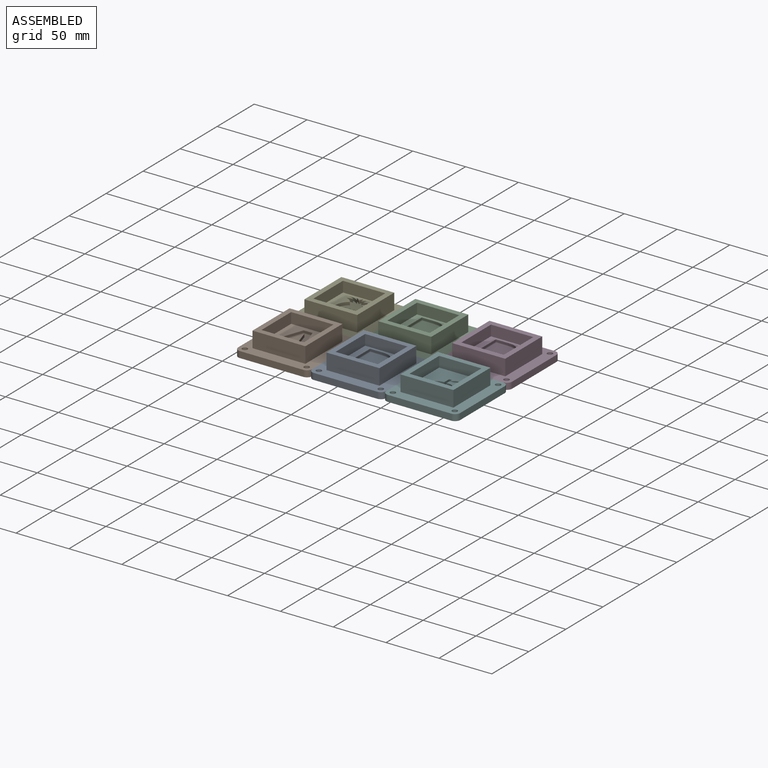
[diagram: assembled view]
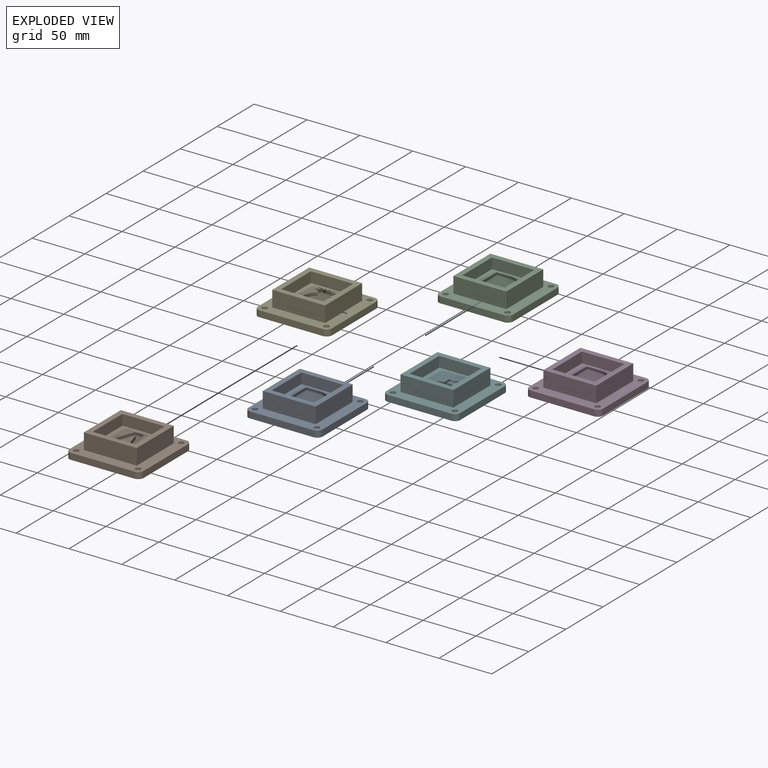
[diagram: exploded view]
GUIDED TOUR — MATED ASSEMBLY (Onshape document 57f4850d10cee010fd6dc6e3, AutoMate assembly 57f4850d10cee010fd6dc6e3_9694a29bd46bf6db44238907_eb34439fa91bccfecb1770f1_default)

This assembly has 6 components, labeled P0..P5 below (a component is one placed occurrence of a part; the same part can appear more than once), held together by 5 mates. A mate is a constraint between two components; its type names the relative motion it leaves free:
  FASTENED — locks the two components together rigidly (no relative motion).
Axis/direction vectors are unit vectors and 'through' points are millimeter coordinates, both in the assembly's world frame.

MATES
  1. FASTENED "緊固 4": P0 <-> P2, direction (0.000, 1.000, 0.000) through (-187.30, 25.57, -44.27) mm
  2. FASTENED "緊固 2": P4 <-> P2, direction (1.000, 0.000, 0.000) through (-222.30, 60.57, -44.27) mm
  3. FASTENED "緊固 5": P5 <-> P0, direction (-1.000, 0.000, 0.000) through (-152.30, -9.43, -44.27) mm
  4. FASTENED "緊固 3": P1 <-> P4, direction (0.000, 1.000, 0.000) through (-257.30, 25.57, -44.27) mm
  5. FASTENED "緊固 1": P2 <-> P3, direction (1.000, 0.000, 0.000) through (-152.30, 60.57, -44.27) mm

ASSEMBLY ORDER
  1. P5 — the base component [order verified]
  2. P3 [order verified]
  3. P4 [order verified]
  4. P2 [order verified]
  5. P0 [order verified]
  6. P1 [order verified]
Order-tag legend:
  [order verified] — this step's position reverses a verified removal order: the component was checked to insert without passing through the ones already placed.

Of the 6 components, 4 carry the full construction recipe — the FeatureScript program that regenerates the part's solid from scratch; the rest are supplied as boundary geometry only.
Each toured component is shown spotlighted twice — in the assembled view, then in the exploded view, where a leader line traces a displaced component back to its assembled socket (saturated green if recipe-attached, orange if geometry-only; every other component desaturated gray) — followed by its recipe or geometry summary and the mates that hold it.
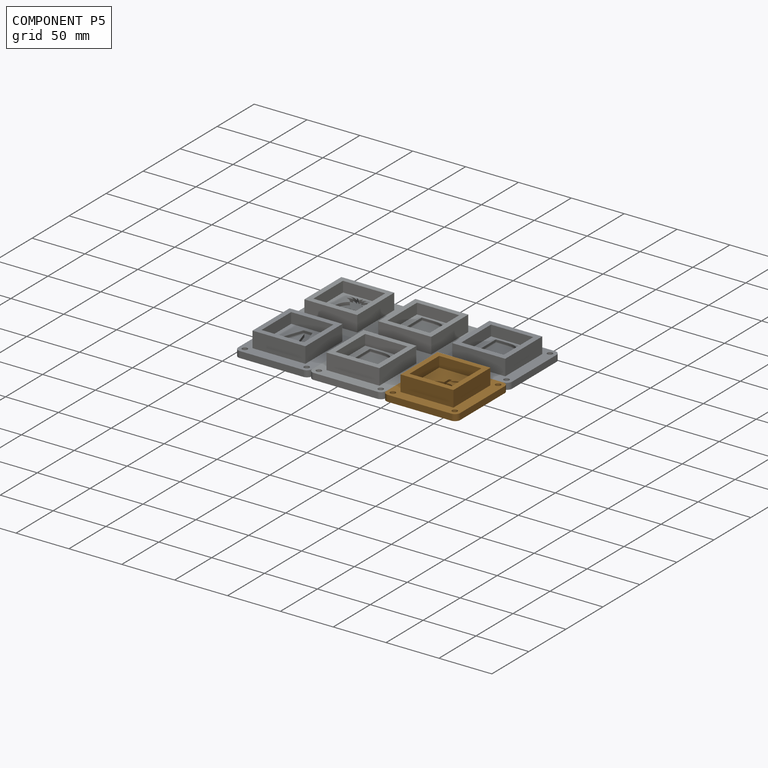
[diagram: component P5 — assembled]
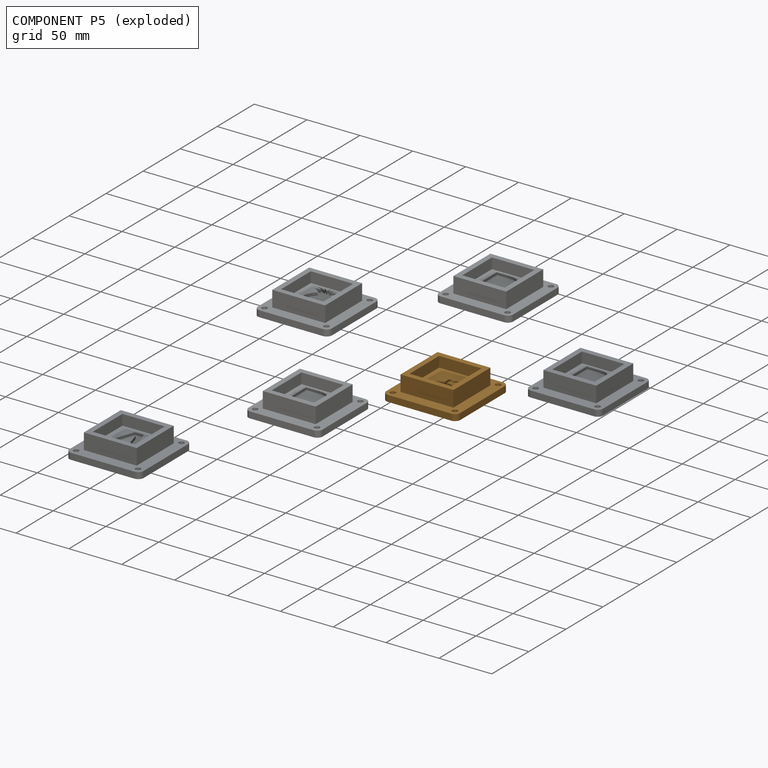
[diagram: component P5 — exploded]
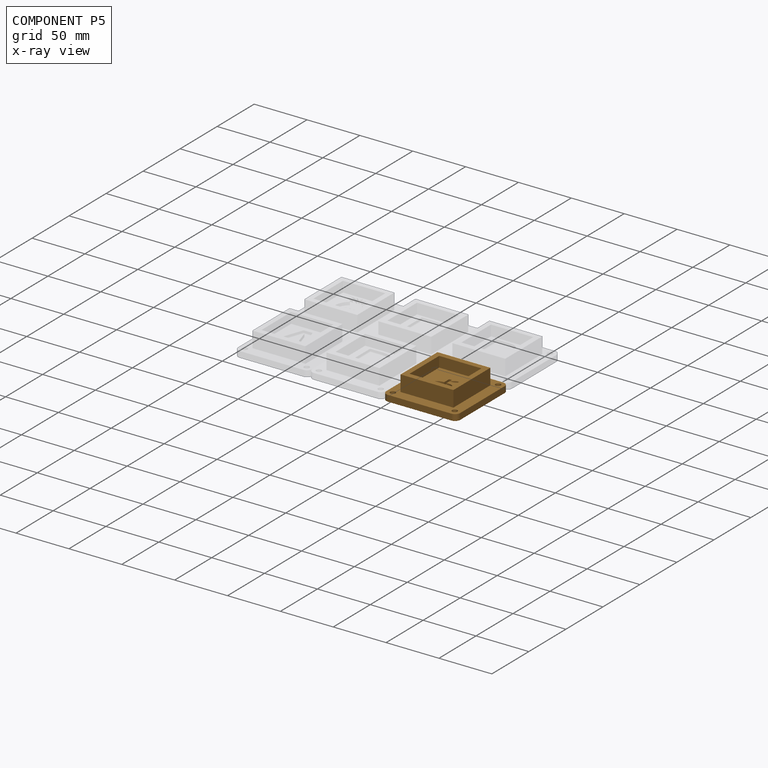
[diagram: component P5 — x-ray view]
COMPONENT P5 — geometry summary (no construction recipe available for this part):
  bounding box: 70.0 x 70.0 x 21.0 mm
  B-rep topology: 1 solid, 40 faces, 200 edges
  volume: 49170 mm^3 (48% of its bounding box)
Held by: FASTENED mate "緊固 5" to P0.
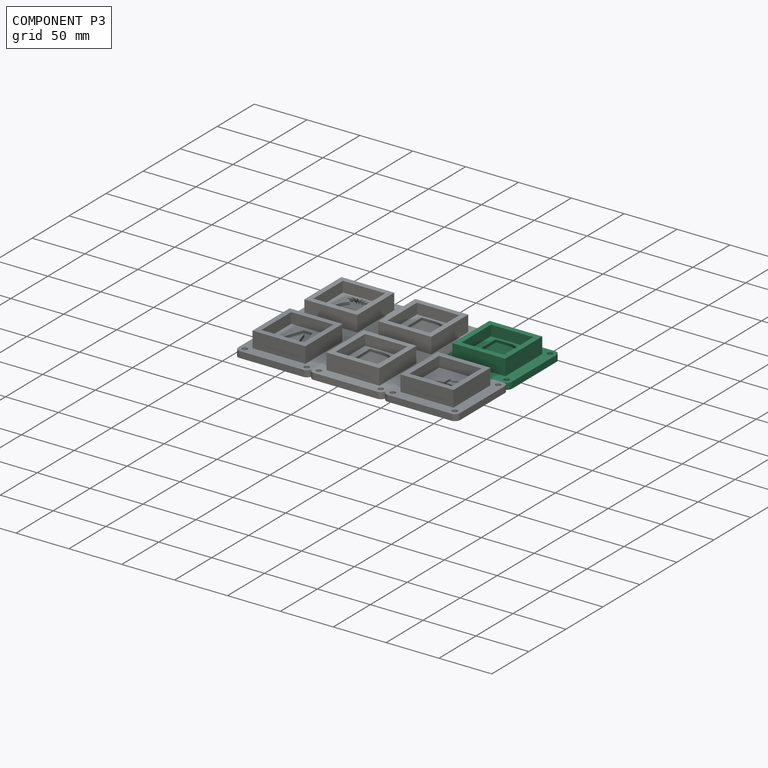
[diagram: component P3 — assembled]
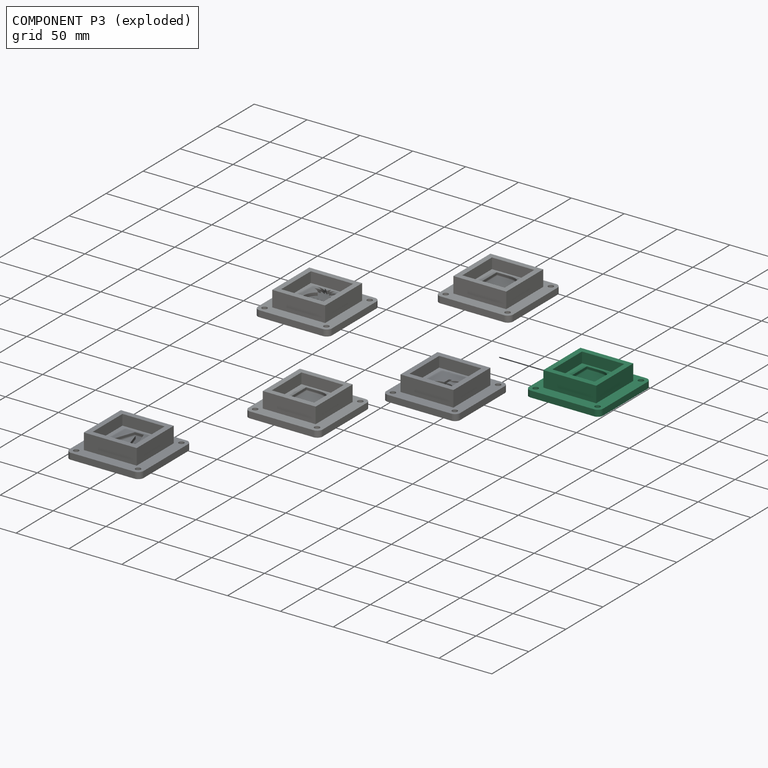
[diagram: component P3 — exploded]
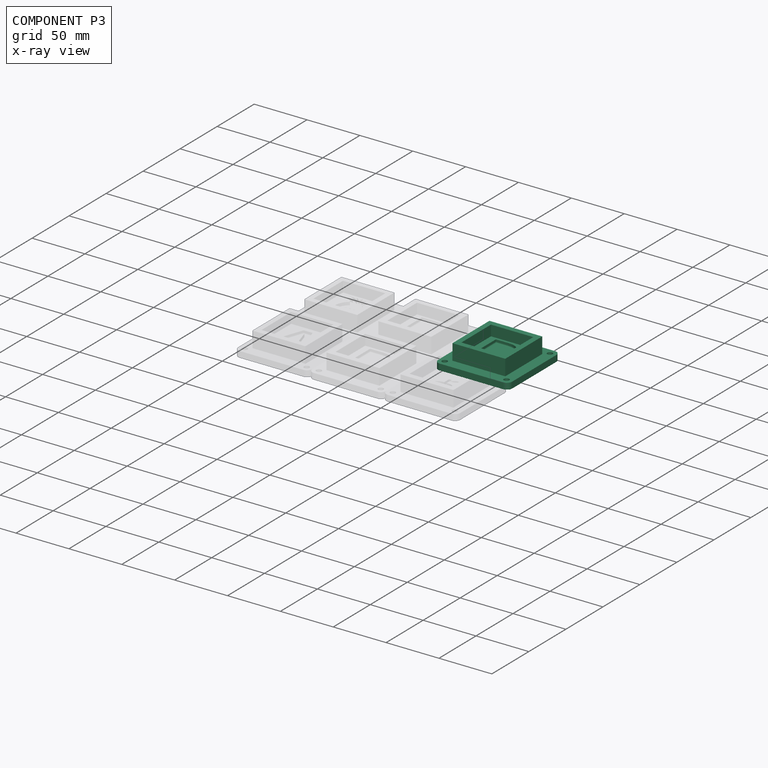
[diagram: component P3 — x-ray view]
COMPONENT P3 — same part as P0 (CADFS 00273545); its construction recipe is shown at P0.
Held by: FASTENED mate "緊固 1" to P2.
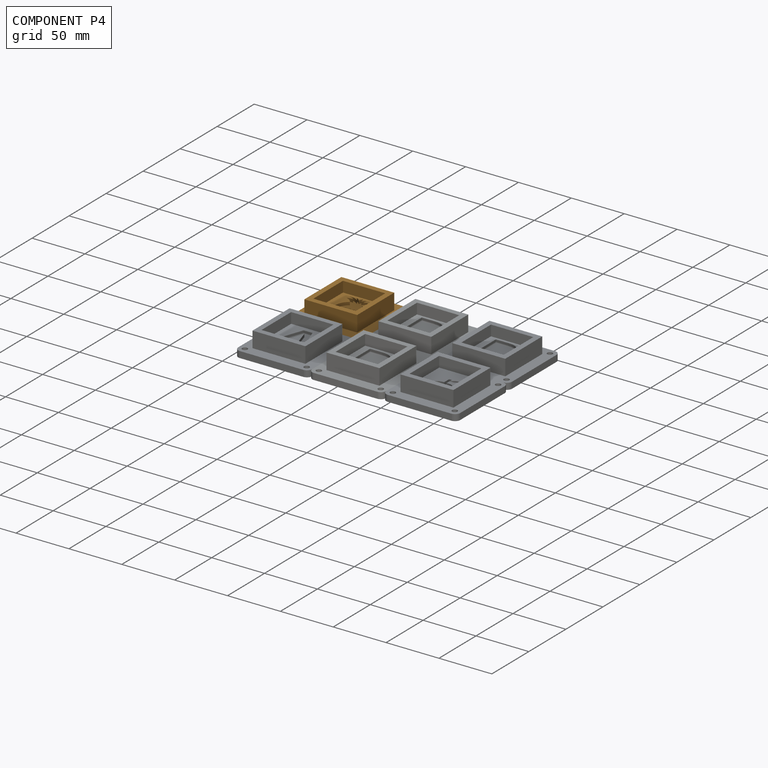
[diagram: component P4 — assembled]
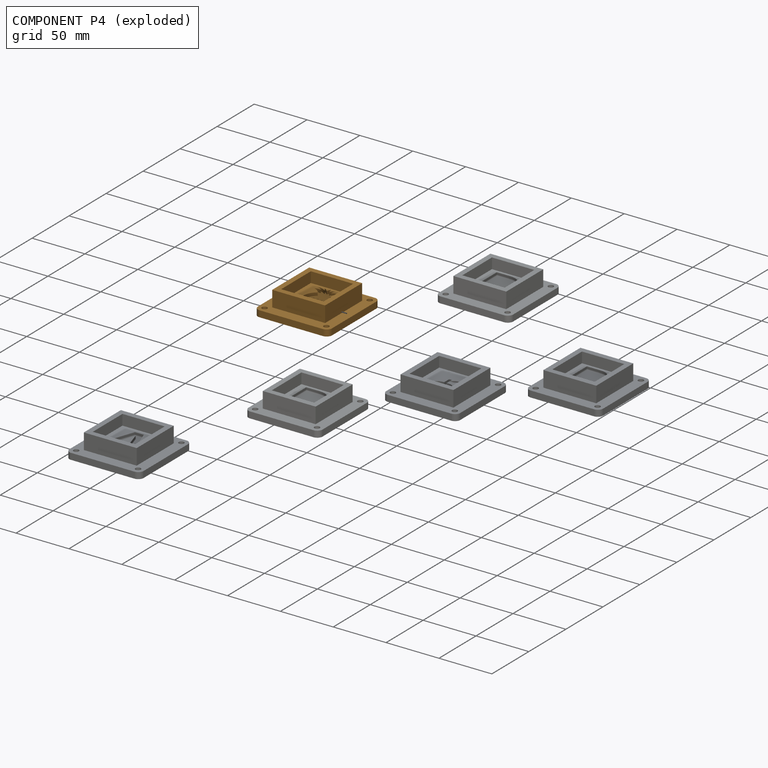
[diagram: component P4 — exploded]
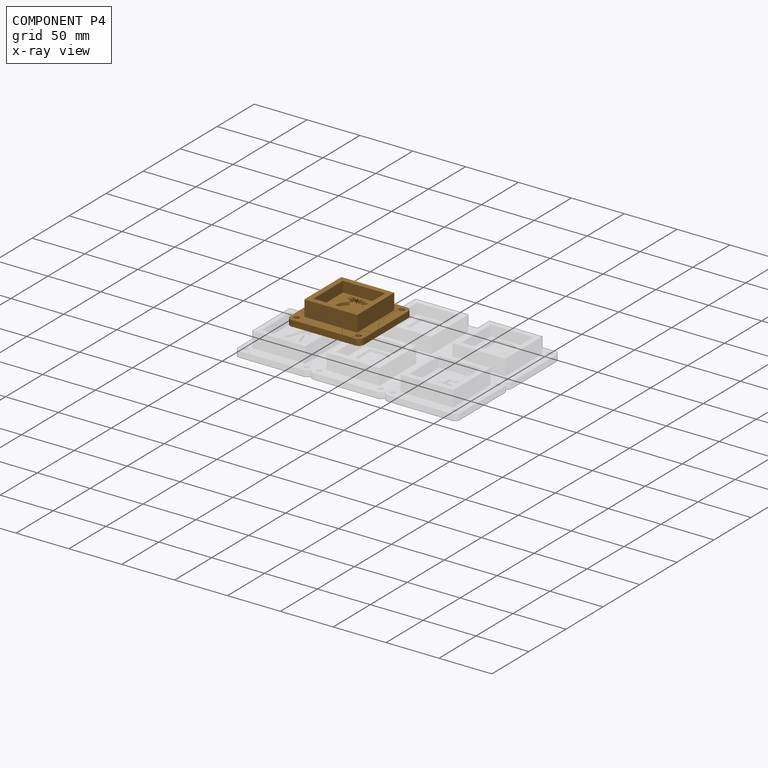
[diagram: component P4 — x-ray view]
COMPONENT P4 — geometry summary (no construction recipe available for this part):
  bounding box: 70.0 x 70.0 x 21.0 mm
  B-rep topology: 1 solid, 163 faces, 776 edges
  volume: 48483 mm^3 (47% of its bounding box)
Held by: FASTENED mate "緊固 2" to P2; FASTENED mate "緊固 3" to P1.
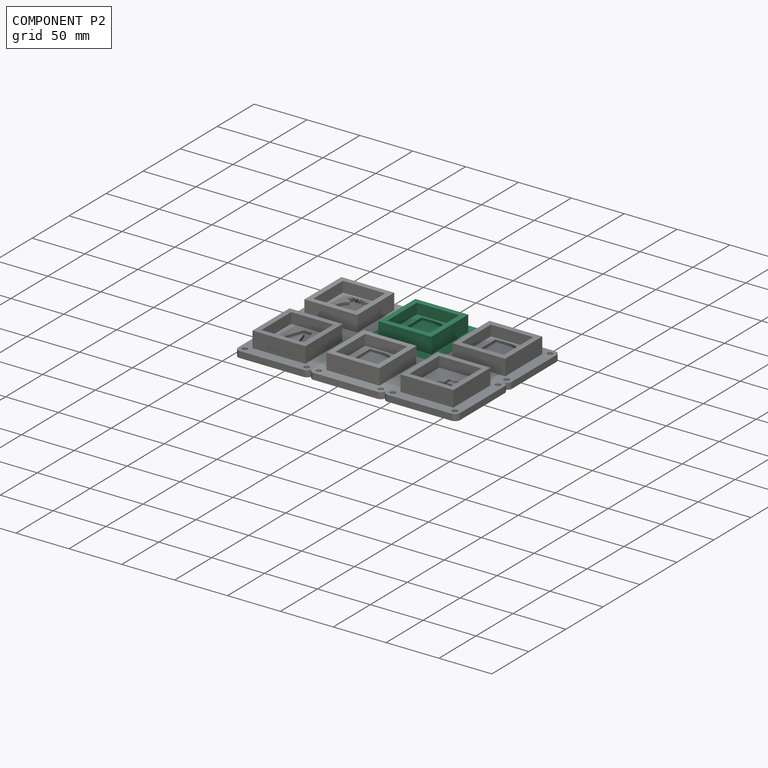
[diagram: component P2 — assembled]
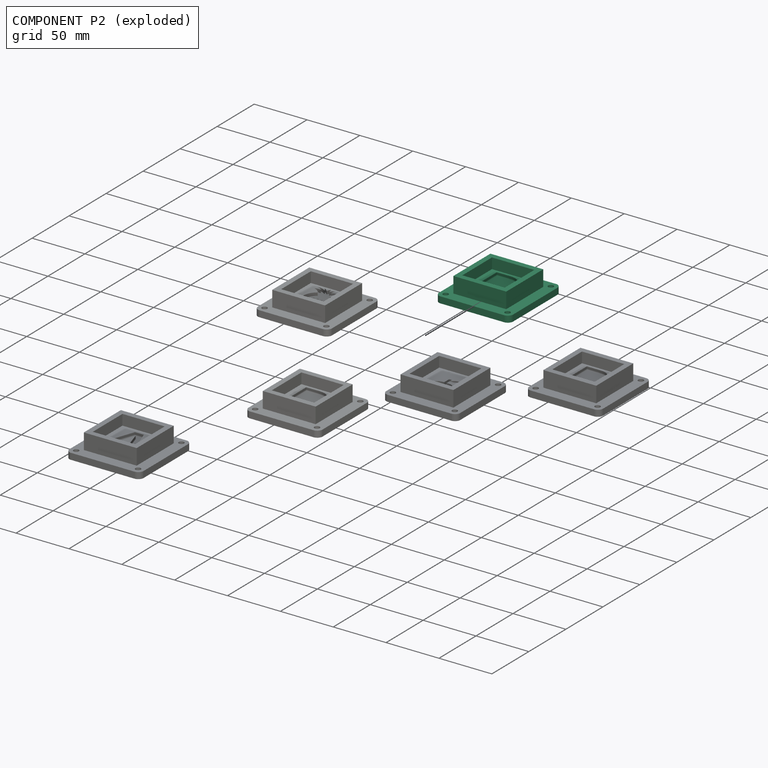
[diagram: component P2 — exploded]
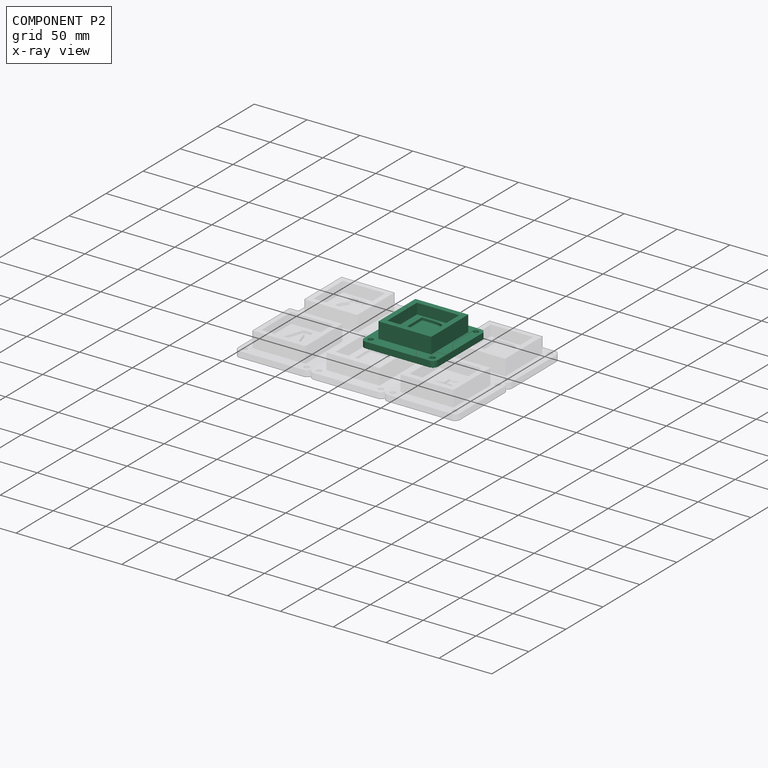
[diagram: component P2 — x-ray view]
COMPONENT P2 — same part as P0 (CADFS 00273545); its construction recipe is shown at P0.
Held by: FASTENED mate "緊固 4" to P0; FASTENED mate "緊固 2" to P4; FASTENED mate "緊固 1" to P3.
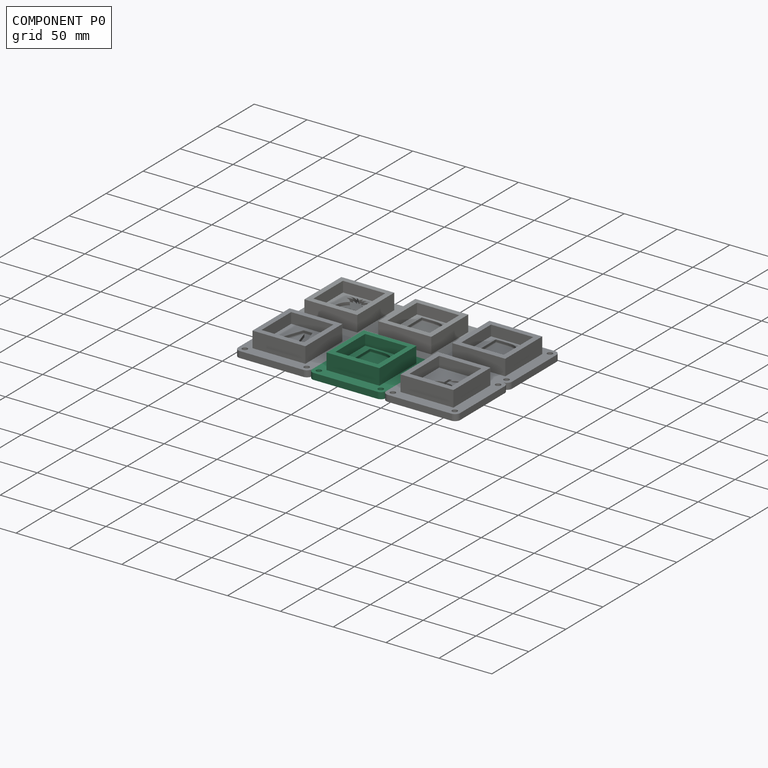
[diagram: component P0 — assembled]
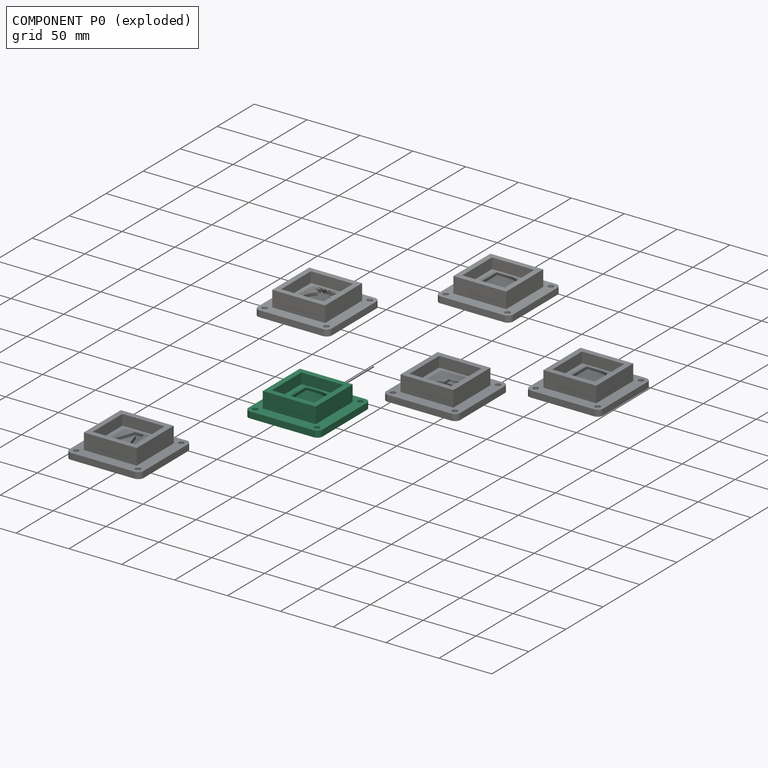
[diagram: component P0 — exploded]
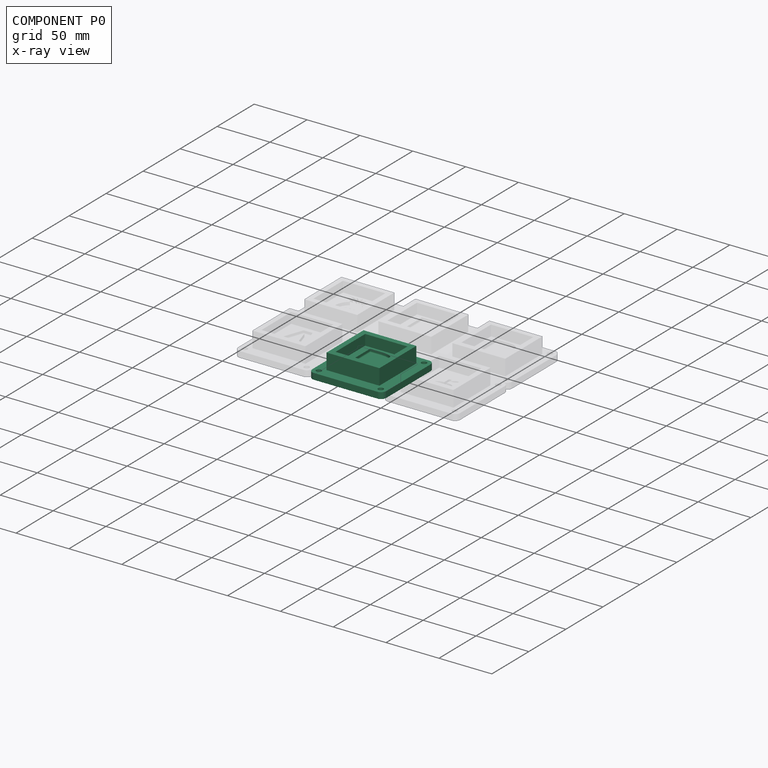
[diagram: component P0 — x-ray view]
COMPONENT P0 — recipe-attached (CADFS 00273545, mesh-verified: the recipe's output STEP matches this component's geometry to below the mesh-comparison resolution (tessellation chordal tolerance ~0.152 mm)).
Held by: FASTENED mate "緊固 4" to P2; FASTENED mate "緊固 5" to P5.
Construction recipe (FeatureScript — the CAD program that rebuilds this solid; sketch coordinates are in the units given by the * unit suffixes, e.g. mm):

FeatureScript 1511;
import(path : "onshape/std/geometry.fs", version : "1511.0");
import(path : "onshape/std/common.fs", version : "1511.0");
const mm = millimeter;
const VERTEX = EntityType.VERTEX;
const EDGE = EntityType.EDGE;
const FACE = EntityType.FACE;
const BODY = EntityType.BODY;
function v(x, y){return vector(x, y);}
function OD(order){return orderDisambiguation(order);}
function OSD(set){return originalSetDisambiguation(set);}
function TD(topology){return topologyDisambiguation(topology);}
function TDD(query){return trueDependencyDisambiguation(query);}
function sQuery(a, b, c) {return sketchEntityQuery(a, b, c);}

annotation { "Feature Type Name" : "Feature", "Feature Type Description" : "" }
export const myFeature = defineFeature(function(context is Context, id is Id, definition is map)
    precondition{}
    {
        {
            var Q0;
            Q0=qCreatedBy(makeId("Top.planeOp"),FACE);
            var sketch = newSketch(context, id + "F0", { "sketchPlane" : qUnion([Q0])});
            skLineSegment(sketch, "E0.bottom", {"start": v(35, -35) * mm, "end": v(-35, -35) * mm});
            skLineSegment(sketch, "E0.top", {"start": v(35, 35) * mm, "end": v(-35, 35) * mm});
            skLineSegment(sketch, "E0.left", {"start": v(35, -35) * mm, "end": v(35, 35) * mm});
            skLineSegment(sketch, "E0.right", {"start": v(-35, -35) * mm, "end": v(-35, 35) * mm});
            skPoint(sketch, "E0.middle", {"position": v(0, 0) * mm});
            skSolve(sketch);
        }
        {
            var Q0;
            Q0=makeQuery(id+"F0.imprint","IMPRINT",FACE,{"disambiguationData":[TD([[makeQuery(id+"F0.imprint","IMPRINT",EDGE,{"derivedFrom":sQuery(id+"F0.wireOp",EDGE,"E0.bottom")}),-1.0]])]});
            extrude(context, id + "F1", {"entities" : qUnion([Q0]), "depth" : 6 * mm});
        }
        {
            var Q0;
            Q0=makeQuery(id+"F1.opExtrude","CAP_FACE",FACE,{"disambiguationData":[OSD([sQuery(id+"F0.wireOp",EDGE,"E0.bottom"),sQuery(id+"F0.wireOp",EDGE,"E0.top"),sQuery(id+"F0.wireOp",EDGE,"E0.left"),sQuery(id+"F0.wireOp",EDGE,"E0.right")])],"isStart":false});
            var sketch = newSketch(context, id + "F2", { "sketchPlane" : qUnion([Q0])});
            skLineSegment(sketch, "E1.bottom", {"start": v(25, -25) * mm, "end": v(-25, -25) * mm});
            skLineSegment(sketch, "E1.top", {"start": v(25, 25) * mm, "end": v(-25, 25) * mm});
            skLineSegment(sketch, "E1.left", {"start": v(25, -25) * mm, "end": v(25, 25) * mm});
            skLineSegment(sketch, "E1.right", {"start": v(-25, -25) * mm, "end": v(-25, 25) * mm});
            skPoint(sketch, "E1.middle", {"position": v(0, 0) * mm});
            skSolve(sketch);
        }
        {
            var Q0;
            Q0=makeQuery(id+"F2.imprint","IMPRINT",FACE,{"disambiguationData":[TD([[makeQuery(id+"F2.imprint","IMPRINT",EDGE,{"derivedFrom":sQuery(id+"F2.wireOp",EDGE,"E1.bottom")}),-1.0]])]});
            extrude(context, id + "F3", {"entities" : qUnion([Q0]), "operationType" : NewBodyOperationType.ADD, "depth" : 15 * mm});
        }
        {
            var Q0;
            Q0=makeQuery(id+"F1.opExtrude","SWEPT_EDGE",EDGE,{"disambiguationData":[OSD([sQuery(id+"F0.wireOp",EDGE,"E0.top"),sQuery(id+"F0.wireOp",EDGE,"E0.right")])]});
            var Q1;
            Q1=makeQuery(id+"F1.opExtrude","SWEPT_EDGE",EDGE,{"disambiguationData":[OSD([sQuery(id+"F0.wireOp",EDGE,"E0.top"),sQuery(id+"F0.wireOp",EDGE,"E0.left")])]});
            var Q2;
            Q2=makeQuery(id+"F1.opExtrude","SWEPT_EDGE",EDGE,{"disambiguationData":[OSD([sQuery(id+"F0.wireOp",EDGE,"E0.bottom"),sQuery(id+"F0.wireOp",EDGE,"E0.left")])]});
            var Q3;
            Q3=makeQuery(id+"F1.opExtrude","SWEPT_EDGE",EDGE,{"disambiguationData":[OSD([sQuery(id+"F0.wireOp",EDGE,"E0.bottom"),sQuery(id+"F0.wireOp",EDGE,"E0.right")])]});
            fillet(context, id + "F4", {"entities" : qUnion([Q0, Q1, Q2, Q3]), "radius" : 5 * mm, "tangentPropagation" : true, "allowEdgeOverflow" : false});
        }
        {
            var Q0;
            Q0=makeQuery(id+"F1.opExtrude","CAP_FACE",FACE,{"disambiguationData":[OSD([sQuery(id+"F0.wireOp",EDGE,"E0.bottom"),sQuery(id+"F0.wireOp",EDGE,"E0.top"),sQuery(id+"F0.wireOp",EDGE,"E0.left"),sQuery(id+"F0.wireOp",EDGE,"E0.right")])],"isStart":false});
            var sketch = newSketch(context, id + "F5", { "sketchPlane" : qUnion([Q0])});
            skLineSegment(sketch, "E2.0", {"start": v(-35, -30) * mm, "end": v(-35, 30) * mm, "construction": true});
            skPoint(sketch, "E3.0", {"position": v(-33.54, 33.54) * mm});
            skArc(sketch, "E4.0", {"start": v(-30, 35) * mm, "mid": v(-33.54, 33.54) * mm, "end": v(-35, 30) * mm});
            skLineSegment(sketch, "E5.0", {"start": v(30, 35) * mm, "end": v(-30, 35) * mm, "construction": true});
            skLineSegment(sketch, "E6.0", {"start": v(35, -30) * mm, "end": v(35, 30) * mm, "construction": true});
            skArc(sketch, "E7.0", {"start": v(30, -35) * mm, "mid": v(33.54, -33.54) * mm, "end": v(35, -30) * mm, "construction": true});
            skLineSegment(sketch, "E8.0", {"start": v(30, -35) * mm, "end": v(-30, -35) * mm, "construction": true});
            skArc(sketch, "E9.0", {"start": v(-35, -30) * mm, "mid": v(-33.54, -33.54) * mm, "end": v(-30, -35) * mm, "construction": true});
            skPoint(sketch, "E10.0", {"position": v(33.54, 33.54) * mm});
            skPoint(sketch, "E11", {"position": v(-33.54, -33.54) * mm});
            skPoint(sketch, "E12", {"position": v(33.54, -33.54) * mm});
            skLineSegment(sketch, "E13", {"start": v(-33.54, 33.54) * mm, "end": v(-25, 25) * mm, "construction": true});
            skLineSegment(sketch, "E14", {"start": v(25, 25) * mm, "end": v(33.54, 33.54) * mm, "construction": true});
            skLineSegment(sketch, "E15", {"start": v(25, -25) * mm, "end": v(33.54, -33.54) * mm, "construction": true});
            skLineSegment(sketch, "E16", {"start": v(-25, -25) * mm, "end": v(-33.54, -33.54) * mm, "construction": true});
            skPoint(sketch, "E17", {"position": v(-29.27, 29.27) * mm});
            skPoint(sketch, "E18", {"position": v(29.27, 29.27) * mm});
            skPoint(sketch, "E19", {"position": v(29.27, -29.27) * mm});
            skPoint(sketch, "E20", {"position": v(-29.27, -29.27) * mm});
            skCircle(sketch, "E21", {"center": v(-29.27, 29.27) * mm, "radius": 2.5 * mm});
            skCircle(sketch, "E22", {"center": v(29.27, 29.27) * mm, "radius": 2.5 * mm});
            skCircle(sketch, "E23", {"center": v(29.27, -29.27) * mm, "radius": 2.5 * mm});
            skCircle(sketch, "E24", {"center": v(-29.27, -29.27) * mm, "radius": 2.5 * mm});
            skSolve(sketch);
        }
        {
            var Q0;
            Q0=makeQuery(id+"F5.imprint","IMPRINT",FACE,{"disambiguationData":[TD([[makeQuery(id+"F5.imprint","IMPRINT",EDGE,{"derivedFrom":sQuery(id+"F5.wireOp",EDGE,"E21")}),1.0]])]});
            var Q1;
            Q1=makeQuery(id+"F5.imprint","IMPRINT",FACE,{"disambiguationData":[TD([[makeQuery(id+"F5.imprint","IMPRINT",EDGE,{"derivedFrom":sQuery(id+"F5.wireOp",EDGE,"E22")}),1.0]])]});
            var Q2;
            Q2=makeQuery(id+"F5.imprint","IMPRINT",FACE,{"disambiguationData":[TD([[makeQuery(id+"F5.imprint","IMPRINT",EDGE,{"derivedFrom":sQuery(id+"F5.wireOp",EDGE,"E23")}),1.0]])]});
            var Q3;
            Q3=makeQuery(id+"F5.imprint","IMPRINT",FACE,{"disambiguationData":[TD([[makeQuery(id+"F5.imprint","IMPRINT",EDGE,{"derivedFrom":sQuery(id+"F5.wireOp",EDGE,"E24")}),1.0]])]});
            extrude(context, id + "F6", {"entities" : qUnion([Q0, Q1, Q2, Q3]), "operationType" : NewBodyOperationType.REMOVE, "oppositeDirection" : true, "depth" : 25 * mm});
        }
        {
            var Q0;
            Q0=makeQuery(id+"F3.opExtrude","CAP_FACE",FACE,{"disambiguationData":[OSD([sQuery(id+"F2.wireOp",EDGE,"E1.bottom"),sQuery(id+"F2.wireOp",EDGE,"E1.top"),sQuery(id+"F2.wireOp",EDGE,"E1.left"),sQuery(id+"F2.wireOp",EDGE,"E1.right")])],"isStart":false});
            var sketch = newSketch(context, id + "F7", { "sketchPlane" : qUnion([Q0])});
            skSolve(sketch);
        }
        {
            var Q0;
            Q0=makeQuery(id+"F7.imprint","IMPRINT",FACE,{"disambiguationData":[TD([[makeQuery(id+"F7.imprint","IMPRINT",EDGE,{"derivedFrom":makeQuery(id+"F3.opExtrude","CAP_EDGE",EDGE,{"disambiguationData":[OSD([sQuery(id+"F2.wireOp",EDGE,"E1.bottom")])],"isStart":false})}),-1.0]])]});
            var sketch = newSketch(context, id + "F8", { "sketchPlane" : qUnion([Q0])});
            skLineSegment(sketch, "E25.bottom", {"start": v(20, -20) * mm, "end": v(-20, -20) * mm});
            skLineSegment(sketch, "E25.top", {"start": v(20, 20) * mm, "end": v(-20, 20) * mm});
            skLineSegment(sketch, "E25.left", {"start": v(20, -20) * mm, "end": v(20, 20) * mm});
            skLineSegment(sketch, "E25.right", {"start": v(-20, -20) * mm, "end": v(-20, 20) * mm});
            skPoint(sketch, "E25.middle", {"position": v(0, 0) * mm});
            skText(sketch, "E26", { "text": "P", "fontName": "OpenSans-Bold.ttf"});
            const initialGuessF8  = {"E26": [-0.0181, -0.01785, 1, 0, 0.03574]};
            skSetInitialGuess(sketch, initialGuessF8);
            skSolve(sketch);
        }
        {
            var Q0;
            Q0=makeQuery(id+"F8.imprint","IMPRINT",FACE,{"disambiguationData":[TD([[makeQuery(id+"F8.imprint","IMPRINT",EDGE,{"derivedFrom":sQuery(id+"F8.wireOp",EDGE,"E25.bottom")}),-1.0]])]});
            extrude(context, id + "F9", {"entities" : qUnion([Q0]), "operationType" : NewBodyOperationType.REMOVE, "oppositeDirection" : true, "depth" : 10 * mm});
        }
        {
            var Q0;
            Q0=makeQuery(id+"F8.imprint","IMPRINT",FACE,{"disambiguationData":[TD([[makeQuery(id+"F8.imprint","IMPRINT",EDGE,{"derivedFrom":sQuery(id+"F8.wireOp",EDGE,"E26.sketch_text.stroke-0")}),-1.0]])]});
            extrude(context, id + "F10", {"entities" : qUnion([Q0]), "operationType" : NewBodyOperationType.REMOVE, "oppositeDirection" : true, "depth" : 13 * mm});
        }
        {
            var Q0;
            Q0=makeQuery(id+"F8.imprint","IMPRINT",FACE,{"disambiguationData":[TD([[makeQuery(id+"F8.imprint","IMPRINT",EDGE,{"derivedFrom":sQuery(id+"F8.wireOp",EDGE,"E26.sketch_text.stroke-0")}),1.0]])]});
            extrude(context, id + "F11", {"entities" : qUnion([Q0]), "operationType" : NewBodyOperationType.REMOVE, "oppositeDirection" : true, "depth" : 13 * mm});
        }
        {
            var Q0;
            Q0=makeQuery(id+"F10.boolean.opBoolean","COPY",EDGE,{"derivedFrom":makeQuery(id+"F10.opExtrude","CAP_EDGE",EDGE,{"disambiguationData":[OSD([sQuery(id+"F8.wireOp",EDGE,"E26.sketch_text.stroke-12")])],"isStart":false})});
            var Q1;
            Q1=makeQuery(id+"F10.boolean.opBoolean","COPY",EDGE,{"derivedFrom":makeQuery(id+"F10.opExtrude","CAP_EDGE",EDGE,{"disambiguationData":[OSD([sQuery(id+"F8.wireOp",EDGE,"E26.sketch_text.stroke-13")])],"isStart":false})});
            var Q2;
            Q2=makeQuery(id+"F10.boolean.opBoolean","COPY",EDGE,{"derivedFrom":makeQuery(id+"F10.opExtrude","CAP_EDGE",EDGE,{"disambiguationData":[OSD([sQuery(id+"F8.wireOp",EDGE,"E26.sketch_text.stroke-14")])],"isStart":false})});
            var Q3;
            Q3=makeQuery(id+"F10.boolean.opBoolean","COPY",EDGE,{"derivedFrom":makeQuery(id+"F10.opExtrude","CAP_EDGE",EDGE,{"disambiguationData":[OSD([sQuery(id+"F8.wireOp",EDGE,"E26.sketch_text.stroke-15")])],"isStart":false})});
            var Q4;
            Q4=makeQuery(id+"F10.boolean.opBoolean","COPY",EDGE,{"derivedFrom":makeQuery(id+"F10.opExtrude","CAP_EDGE",EDGE,{"disambiguationData":[OSD([sQuery(id+"F8.wireOp",EDGE,"E26.sketch_text.stroke-7")])],"isStart":false})});
            var Q5;
            Q5=makeQuery(id+"F10.boolean.opBoolean","COPY",EDGE,{"derivedFrom":makeQuery(id+"F10.opExtrude","CAP_EDGE",EDGE,{"disambiguationData":[OSD([sQuery(id+"F8.wireOp",EDGE,"E26.sketch_text.stroke-8")])],"isStart":false})});
            var Q6;
            Q6=makeQuery(id+"F10.boolean.opBoolean","COPY",EDGE,{"derivedFrom":makeQuery(id+"F10.opExtrude","CAP_EDGE",EDGE,{"disambiguationData":[OSD([sQuery(id+"F8.wireOp",EDGE,"E26.sketch_text.stroke-9")])],"isStart":false})});
            var Q7;
            Q7=makeQuery(id+"F10.boolean.opBoolean","COPY",EDGE,{"derivedFrom":makeQuery(id+"F10.opExtrude","CAP_EDGE",EDGE,{"disambiguationData":[OSD([sQuery(id+"F8.wireOp",EDGE,"E26.sketch_text.stroke-10")])],"isStart":false})});
            var Q8;
            Q8=makeQuery(id+"F10.boolean.opBoolean","COPY",EDGE,{"derivedFrom":makeQuery(id+"F10.opExtrude","CAP_EDGE",EDGE,{"disambiguationData":[OSD([sQuery(id+"F8.wireOp",EDGE,"E26.sketch_text.stroke-11")])],"isStart":false})});
            fillet(context, id + "F12", {"entities" : qUnion([Q0, Q1, Q2, Q3, Q4, Q5, Q6, Q7, Q8]), "radius" : 1 * mm, "tangentPropagation" : true, "allowEdgeOverflow" : false});
        }
    });
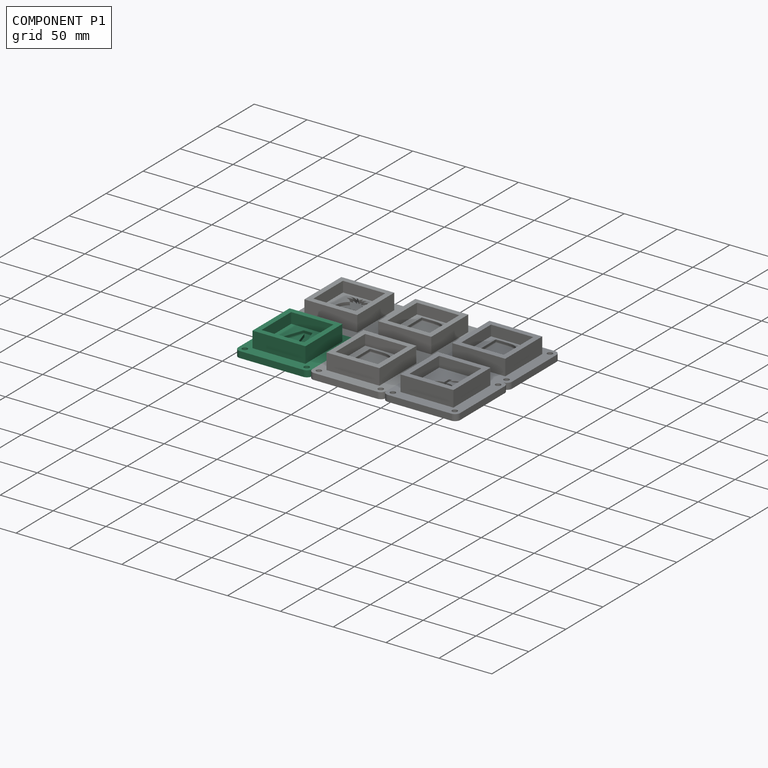
[diagram: component P1 — assembled]
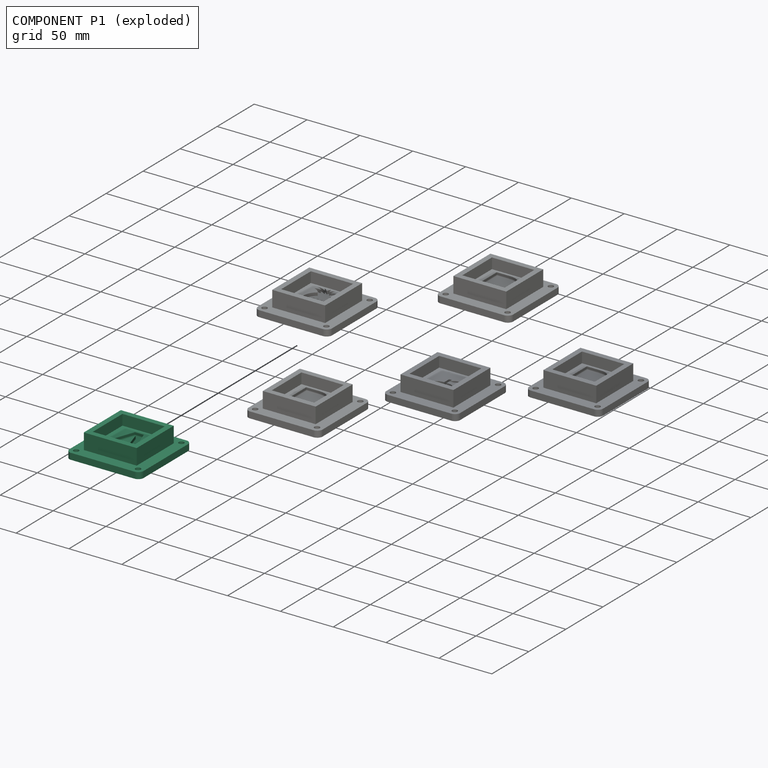
[diagram: component P1 — exploded]
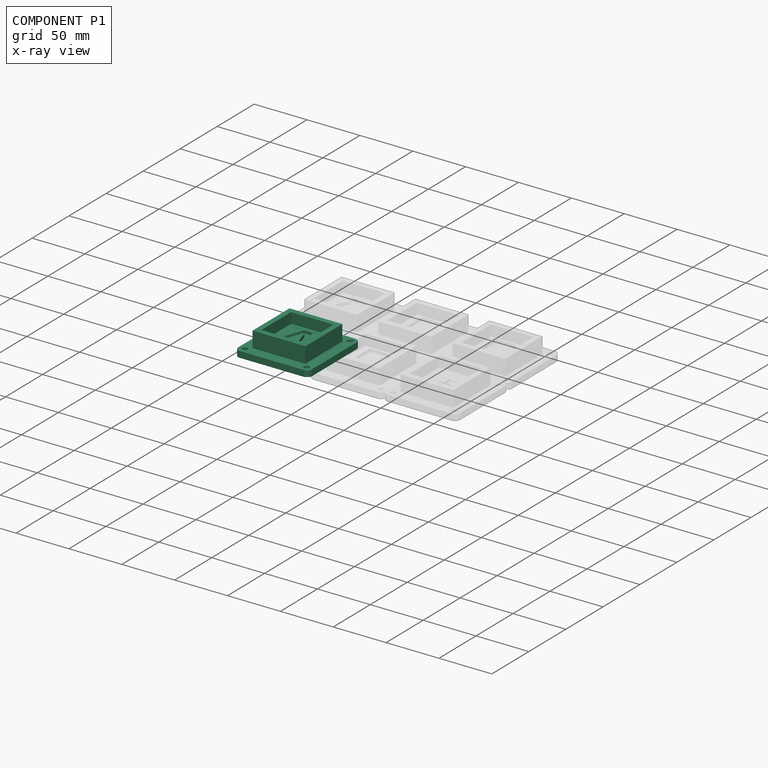
[diagram: component P1 — x-ray view]
COMPONENT P1 — recipe-attached (CADFS 00273627, mesh-verified: the recipe's output STEP matches this component's geometry to below the mesh-comparison resolution (tessellation chordal tolerance ~0.152 mm)).
Held by: FASTENED mate "緊固 3" to P4.
Construction recipe (FeatureScript — the CAD program that rebuilds this solid; sketch coordinates are in the units given by the * unit suffixes, e.g. mm):

FeatureScript 1511;
import(path : "onshape/std/geometry.fs", version : "1511.0");
import(path : "onshape/std/common.fs", version : "1511.0");
const mm = millimeter;
const VERTEX = EntityType.VERTEX;
const EDGE = EntityType.EDGE;
const FACE = EntityType.FACE;
const BODY = EntityType.BODY;
function v(x, y){return vector(x, y);}
function OD(order){return orderDisambiguation(order);}
function OSD(set){return originalSetDisambiguation(set);}
function TD(topology){return topologyDisambiguation(topology);}
function TDD(query){return trueDependencyDisambiguation(query);}
function sQuery(a, b, c) {return sketchEntityQuery(a, b, c);}

annotation { "Feature Type Name" : "Feature", "Feature Type Description" : "" }
export const myFeature = defineFeature(function(context is Context, id is Id, definition is map)
    precondition{}
    {
        {
            var Q0;
            Q0=qCreatedBy(makeId("Top.planeOp"),FACE);
            var sketch = newSketch(context, id + "F0", { "sketchPlane" : qUnion([Q0])});
            skLineSegment(sketch, "E0.bottom", {"start": v(35, -35) * mm, "end": v(-35, -35) * mm});
            skLineSegment(sketch, "E0.top", {"start": v(35, 35) * mm, "end": v(-35, 35) * mm});
            skLineSegment(sketch, "E0.left", {"start": v(35, -35) * mm, "end": v(35, 35) * mm});
            skLineSegment(sketch, "E0.right", {"start": v(-35, -35) * mm, "end": v(-35, 35) * mm});
            skPoint(sketch, "E0.middle", {"position": v(0, 0) * mm});
            skSolve(sketch);
        }
        {
            var Q0;
            Q0=makeQuery(id+"F0.imprint","IMPRINT",FACE,{"disambiguationData":[TD([[makeQuery(id+"F0.imprint","IMPRINT",EDGE,{"derivedFrom":sQuery(id+"F0.wireOp",EDGE,"E0.bottom")}),-1.0]])]});
            extrude(context, id + "F1", {"entities" : qUnion([Q0]), "depth" : 6 * mm});
        }
        {
            var Q0;
            Q0=makeQuery(id+"F1.opExtrude","CAP_FACE",FACE,{"disambiguationData":[OSD([sQuery(id+"F0.wireOp",EDGE,"E0.bottom"),sQuery(id+"F0.wireOp",EDGE,"E0.top"),sQuery(id+"F0.wireOp",EDGE,"E0.left"),sQuery(id+"F0.wireOp",EDGE,"E0.right")])],"isStart":false});
            var sketch = newSketch(context, id + "F2", { "sketchPlane" : qUnion([Q0])});
            skLineSegment(sketch, "E1.bottom", {"start": v(25, -25) * mm, "end": v(-25, -25) * mm});
            skLineSegment(sketch, "E1.top", {"start": v(25, 25) * mm, "end": v(-25, 25) * mm});
            skLineSegment(sketch, "E1.left", {"start": v(25, -25) * mm, "end": v(25, 25) * mm});
            skLineSegment(sketch, "E1.right", {"start": v(-25, -25) * mm, "end": v(-25, 25) * mm});
            skPoint(sketch, "E1.middle", {"position": v(0, 0) * mm});
            skSolve(sketch);
        }
        {
            var Q0;
            Q0=makeQuery(id+"F2.imprint","IMPRINT",FACE,{"disambiguationData":[TD([[makeQuery(id+"F2.imprint","IMPRINT",EDGE,{"derivedFrom":sQuery(id+"F2.wireOp",EDGE,"E1.bottom")}),-1.0]])]});
            extrude(context, id + "F3", {"entities" : qUnion([Q0]), "operationType" : NewBodyOperationType.ADD, "depth" : 15 * mm});
        }
        {
            var Q0;
            Q0=makeQuery(id+"F1.opExtrude","SWEPT_EDGE",EDGE,{"disambiguationData":[OSD([sQuery(id+"F0.wireOp",EDGE,"E0.top"),sQuery(id+"F0.wireOp",EDGE,"E0.right")])]});
            var Q1;
            Q1=makeQuery(id+"F1.opExtrude","SWEPT_EDGE",EDGE,{"disambiguationData":[OSD([sQuery(id+"F0.wireOp",EDGE,"E0.top"),sQuery(id+"F0.wireOp",EDGE,"E0.left")])]});
            var Q2;
            Q2=makeQuery(id+"F1.opExtrude","SWEPT_EDGE",EDGE,{"disambiguationData":[OSD([sQuery(id+"F0.wireOp",EDGE,"E0.bottom"),sQuery(id+"F0.wireOp",EDGE,"E0.left")])]});
            var Q3;
            Q3=makeQuery(id+"F1.opExtrude","SWEPT_EDGE",EDGE,{"disambiguationData":[OSD([sQuery(id+"F0.wireOp",EDGE,"E0.bottom"),sQuery(id+"F0.wireOp",EDGE,"E0.right")])]});
            fillet(context, id + "F4", {"entities" : qUnion([Q0, Q1, Q2, Q3]), "radius" : 5 * mm, "tangentPropagation" : true, "allowEdgeOverflow" : false});
        }
        {
            var Q0;
            Q0=makeQuery(id+"F1.opExtrude","CAP_FACE",FACE,{"disambiguationData":[OSD([sQuery(id+"F0.wireOp",EDGE,"E0.bottom"),sQuery(id+"F0.wireOp",EDGE,"E0.top"),sQuery(id+"F0.wireOp",EDGE,"E0.left"),sQuery(id+"F0.wireOp",EDGE,"E0.right")])],"isStart":false});
            var sketch = newSketch(context, id + "F5", { "sketchPlane" : qUnion([Q0])});
            skLineSegment(sketch, "E2.0", {"start": v(-35, -30) * mm, "end": v(-35, 30) * mm, "construction": true});
            skPoint(sketch, "E3.0", {"position": v(-33.54, 33.54) * mm});
            skArc(sketch, "E4.0", {"start": v(-30, 35) * mm, "mid": v(-33.54, 33.54) * mm, "end": v(-35, 30) * mm});
            skLineSegment(sketch, "E5.0", {"start": v(30, 35) * mm, "end": v(-30, 35) * mm, "construction": true});
            skLineSegment(sketch, "E6.0", {"start": v(35, -30) * mm, "end": v(35, 30) * mm, "construction": true});
            skArc(sketch, "E7.0", {"start": v(30, -35) * mm, "mid": v(33.54, -33.54) * mm, "end": v(35, -30) * mm, "construction": true});
            skLineSegment(sketch, "E8.0", {"start": v(30, -35) * mm, "end": v(-30, -35) * mm, "construction": true});
            skArc(sketch, "E9.0", {"start": v(-35, -30) * mm, "mid": v(-33.54, -33.54) * mm, "end": v(-30, -35) * mm, "construction": true});
            skPoint(sketch, "E10.0", {"position": v(33.54, 33.54) * mm});
            skPoint(sketch, "E11", {"position": v(-33.54, -33.54) * mm});
            skPoint(sketch, "E12", {"position": v(33.54, -33.54) * mm});
            skLineSegment(sketch, "E13", {"start": v(-33.54, 33.54) * mm, "end": v(-25, 25) * mm, "construction": true});
            skLineSegment(sketch, "E14", {"start": v(25, 25) * mm, "end": v(33.54, 33.54) * mm, "construction": true});
            skLineSegment(sketch, "E15", {"start": v(25, -25) * mm, "end": v(33.54, -33.54) * mm, "construction": true});
            skLineSegment(sketch, "E16", {"start": v(-25, -25) * mm, "end": v(-33.54, -33.54) * mm, "construction": true});
            skPoint(sketch, "E17", {"position": v(-29.27, 29.27) * mm});
            skPoint(sketch, "E18", {"position": v(29.27, 29.27) * mm});
            skPoint(sketch, "E19", {"position": v(29.27, -29.27) * mm});
            skPoint(sketch, "E20", {"position": v(-29.27, -29.27) * mm});
            skCircle(sketch, "E21", {"center": v(-29.27, 29.27) * mm, "radius": 2.5 * mm});
            skCircle(sketch, "E22", {"center": v(29.27, 29.27) * mm, "radius": 2.5 * mm});
            skCircle(sketch, "E23", {"center": v(29.27, -29.27) * mm, "radius": 2.5 * mm});
            skCircle(sketch, "E24", {"center": v(-29.27, -29.27) * mm, "radius": 2.5 * mm});
            skSolve(sketch);
        }
        {
            var Q0;
            Q0=makeQuery(id+"F5.imprint","IMPRINT",FACE,{"disambiguationData":[TD([[makeQuery(id+"F5.imprint","IMPRINT",EDGE,{"derivedFrom":sQuery(id+"F5.wireOp",EDGE,"E21")}),1.0]])]});
            var Q1;
            Q1=makeQuery(id+"F5.imprint","IMPRINT",FACE,{"disambiguationData":[TD([[makeQuery(id+"F5.imprint","IMPRINT",EDGE,{"derivedFrom":sQuery(id+"F5.wireOp",EDGE,"E22")}),1.0]])]});
            var Q2;
            Q2=makeQuery(id+"F5.imprint","IMPRINT",FACE,{"disambiguationData":[TD([[makeQuery(id+"F5.imprint","IMPRINT",EDGE,{"derivedFrom":sQuery(id+"F5.wireOp",EDGE,"E23")}),1.0]])]});
            var Q3;
            Q3=makeQuery(id+"F5.imprint","IMPRINT",FACE,{"disambiguationData":[TD([[makeQuery(id+"F5.imprint","IMPRINT",EDGE,{"derivedFrom":sQuery(id+"F5.wireOp",EDGE,"E24")}),1.0]])]});
            extrude(context, id + "F6", {"entities" : qUnion([Q0, Q1, Q2, Q3]), "operationType" : NewBodyOperationType.REMOVE, "oppositeDirection" : true, "depth" : 25 * mm});
        }
        {
            var Q0;
            Q0=makeQuery(id+"F3.opExtrude","CAP_FACE",FACE,{"disambiguationData":[OSD([sQuery(id+"F2.wireOp",EDGE,"E1.bottom"),sQuery(id+"F2.wireOp",EDGE,"E1.top"),sQuery(id+"F2.wireOp",EDGE,"E1.left"),sQuery(id+"F2.wireOp",EDGE,"E1.right")])],"isStart":false});
            var sketch = newSketch(context, id + "F7", { "sketchPlane" : qUnion([Q0])});
            skSolve(sketch);
        }
        {
            var Q0;
            Q0=makeQuery(id+"F7.imprint","IMPRINT",FACE,{"disambiguationData":[TD([[makeQuery(id+"F7.imprint","IMPRINT",EDGE,{"derivedFrom":makeQuery(id+"F3.opExtrude","CAP_EDGE",EDGE,{"disambiguationData":[OSD([sQuery(id+"F2.wireOp",EDGE,"E1.bottom")])],"isStart":false})}),-1.0]])]});
            var sketch = newSketch(context, id + "F8", { "sketchPlane" : qUnion([Q0])});
            skLineSegment(sketch, "E25.bottom", {"start": v(20, -20) * mm, "end": v(-20, -20) * mm});
            skLineSegment(sketch, "E25.top", {"start": v(20, 20) * mm, "end": v(-20, 20) * mm});
            skLineSegment(sketch, "E25.left", {"start": v(20, -20) * mm, "end": v(20, 20) * mm});
            skLineSegment(sketch, "E25.right", {"start": v(-20, -20) * mm, "end": v(-20, 20) * mm});
            skPoint(sketch, "E25.middle", {"position": v(0, 0) * mm});
            skSolve(sketch);
        }
        {
            var Q0;
            Q0=makeQuery(id+"F7.imprint","IMPRINT",FACE,{"disambiguationData":[TD([[makeQuery(id+"F7.imprint","IMPRINT",EDGE,{"derivedFrom":makeQuery(id+"F3.opExtrude","CAP_EDGE",EDGE,{"disambiguationData":[OSD([sQuery(id+"F2.wireOp",EDGE,"E1.bottom")])],"isStart":false})}),-1.0]])]});
            var sketch = newSketch(context, id + "F9", { "sketchPlane" : qUnion([Q0])});
            skText(sketch, "E26", { "text": "A", "fontName": "OpenSans-Bold.ttf"});
            const initialGuessF9  = {"E26": [-0.01665, -0.0168, 1, 0, 0.0327]};
            skSetInitialGuess(sketch, initialGuessF9);
            skSolve(sketch);
        }
        {
            var Q0;
            Q0 = qSketchRegion(id + "F8", true);
            var Q1;
            Q1 = qSketchRegion(id + "F9", true);
            extrude(context, id + "F10", {"entities" : qUnion([Q0, Q1]), "operationType" : NewBodyOperationType.REMOVE, "oppositeDirection" : true, "depth" : 10 * mm});
        }
        {
            var Q0;
            Q0 = qSketchRegion(id + "F9", true);
            extrude(context, id + "F11", {"entities" : qUnion([Q0]), "operationType" : NewBodyOperationType.REMOVE, "oppositeDirection" : true, "depth" : 13 * mm});
        }
        {
            var Q0;
            Q0=makeQuery(id+"F11.boolean.opBoolean","COPY",EDGE,{"derivedFrom":makeQuery(id+"F11.opExtrude","CAP_EDGE",EDGE,{"disambiguationData":[OSD([sQuery(id+"F9.wireOp",EDGE,"E26.sketch_text.stroke-4")])],"isStart":false})});
            var Q1;
            Q1=makeQuery(id+"F11.boolean.opBoolean","COPY",EDGE,{"derivedFrom":makeQuery(id+"F11.opExtrude","CAP_EDGE",EDGE,{"disambiguationData":[OSD([sQuery(id+"F9.wireOp",EDGE,"E26.sketch_text.stroke-5")])],"isStart":false})});
            var Q2;
            Q2=makeQuery(id+"F11.boolean.opBoolean","COPY",EDGE,{"derivedFrom":makeQuery(id+"F11.opExtrude","CAP_EDGE",EDGE,{"disambiguationData":[OSD([sQuery(id+"F9.wireOp",EDGE,"E26.sketch_text.stroke-6")])],"isStart":false})});
            var Q3;
            Q3=makeQuery(id+"F11.boolean.opBoolean","COPY",EDGE,{"derivedFrom":makeQuery(id+"F11.opExtrude","CAP_EDGE",EDGE,{"disambiguationData":[OSD([sQuery(id+"F9.wireOp",EDGE,"E26.sketch_text.stroke-0")])],"isStart":false})});
            var Q4;
            Q4=makeQuery(id+"F11.boolean.opBoolean","COPY",EDGE,{"derivedFrom":makeQuery(id+"F11.opExtrude","CAP_EDGE",EDGE,{"disambiguationData":[OSD([sQuery(id+"F9.wireOp",EDGE,"E26.sketch_text.stroke-1")])],"isStart":false})});
            var Q5;
            Q5=makeQuery(id+"F11.boolean.opBoolean","COPY",EDGE,{"derivedFrom":makeQuery(id+"F11.opExtrude","CAP_EDGE",EDGE,{"disambiguationData":[OSD([sQuery(id+"F9.wireOp",EDGE,"E26.sketch_text.stroke-2")])],"isStart":false})});
            var Q6;
            Q6=makeQuery(id+"F11.boolean.opBoolean","COPY",EDGE,{"derivedFrom":makeQuery(id+"F11.opExtrude","CAP_EDGE",EDGE,{"disambiguationData":[OSD([sQuery(id+"F9.wireOp",EDGE,"E26.sketch_text.stroke-7")])],"isStart":false})});
            var Q7;
            Q7=makeQuery(id+"F11.boolean.opBoolean","COPY",EDGE,{"derivedFrom":makeQuery(id+"F11.opExtrude","CAP_EDGE",EDGE,{"disambiguationData":[OSD([sQuery(id+"F9.wireOp",EDGE,"E26.sketch_text.stroke-3")])],"isStart":false})});
            fillet(context, id + "F12", {"entities" : qUnion([Q0, Q1, Q2, Q3, Q4, Q5, Q6, Q7]), "radius" : 1 * mm, "tangentPropagation" : true, "allowEdgeOverflow" : false});
        }
        {
            var Q0;
            Q0=makeQuery(id+"F11.boolean.opBoolean","COPY",EDGE,{"derivedFrom":makeQuery(id+"F11.opExtrude","CAP_EDGE",EDGE,{"disambiguationData":[OSD([sQuery(id+"F9.wireOp",EDGE,"E26.sketch_text.stroke-8")])],"isStart":false})});
            var Q1;
            Q1=makeQuery(id+"F11.boolean.opBoolean","COPY",EDGE,{"derivedFrom":makeQuery(id+"F11.opExtrude","CAP_EDGE",EDGE,{"disambiguationData":[OSD([sQuery(id+"F9.wireOp",EDGE,"E26.sketch_text.stroke-9")])],"isStart":false})});
            var Q2;
            Q2=makeQuery(id+"F11.boolean.opBoolean","COPY",EDGE,{"derivedFrom":makeQuery(id+"F11.opExtrude","CAP_EDGE",EDGE,{"disambiguationData":[OSD([sQuery(id+"F9.wireOp",EDGE,"E26.sketch_text.stroke-11")])],"isStart":false})});
            var Q3;
            Q3=makeQuery(id+"F11.boolean.opBoolean","COPY",EDGE,{"derivedFrom":makeQuery(id+"F11.opExtrude","CAP_EDGE",EDGE,{"disambiguationData":[OSD([sQuery(id+"F9.wireOp",EDGE,"E26.sketch_text.stroke-10")])],"isStart":false})});
            fillet(context, id + "F13", {"entities" : qUnion([Q0, Q1, Q2, Q3]), "radius" : 0.5 * mm, "tangentPropagation" : true, "allowEdgeOverflow" : false});
        }
    });
PROVENANCE & LICENSES
Assembly (occurrences, transforms, mates, per-part STEP geometry): AutoMate dataset, Zenodo record 7776208, CC0.
Construction recipes: CADFS (HuggingFace VladPyatov/CADFS, CC-BY-4.0, layered over the ABC dataset), FeatureScript reconstruction programs keyed by ABC model id.
Join: ABC meta listings map ABC model id -> Onshape documentId; within a shared document, parts are matched by geometric signature (bounding-box dims + volume at 0.1% relative tolerance, exact B-rep face/solid counts).
Verification: 4 of this assembly's 6 components carry a recipe attachment, and every attachment is mesh-verified: the CADFS STEP and the AutoMate member STEP were compared as meshes in their shared local frame (symmetric sampled-point-to-mesh distance); worst across the 4 attachments: below the mesh-comparison resolution (tessellation chordal tolerance ~0.152 mm) on a 101 mm part.
Renders: orthographic iso camera (az 35 / el 25); the floor grid conveys scale (grid pitch printed in each image; no ruler). In the exploded view each component is displaced by its stored offset vector: the offsets alone carry the explosion direction (mate normal/axis signs are not orientation cues and do not encode it), and separation distances are assigned per mate-chain, not proportionally to assembly-order depth.
